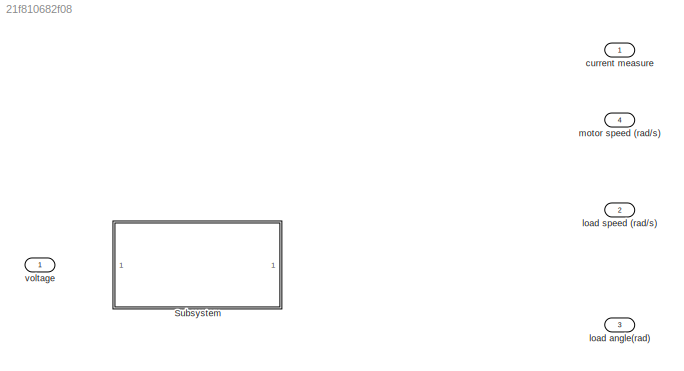
MODEL slx_21f810682f08
KIND model
CONFIG AbsTol = auto
CONFIG EnableMultiTasking = off
CONFIG FixedStep = auto
CONFIG MaxStep = auto
CONFIG MinStep = auto
CONFIG RelTol = 1e-3
CONFIG SampleTimeConstraint = Unconstrained
CONFIG SolverName = VariableStepAuto
CONFIG StartTime = 0.0
CONFIG StopTime = 1
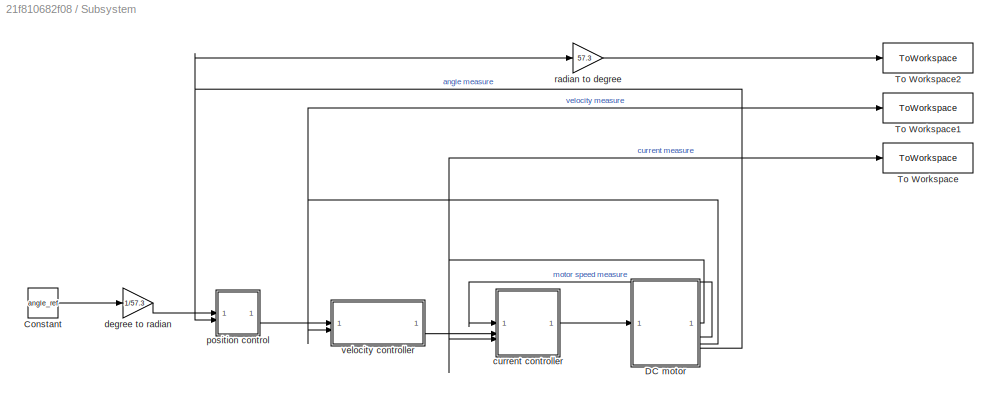
BLOCK [SubSystem] Subsystem
BLOCK [Constant] Subsystem/Constant
  Value = angle_ref
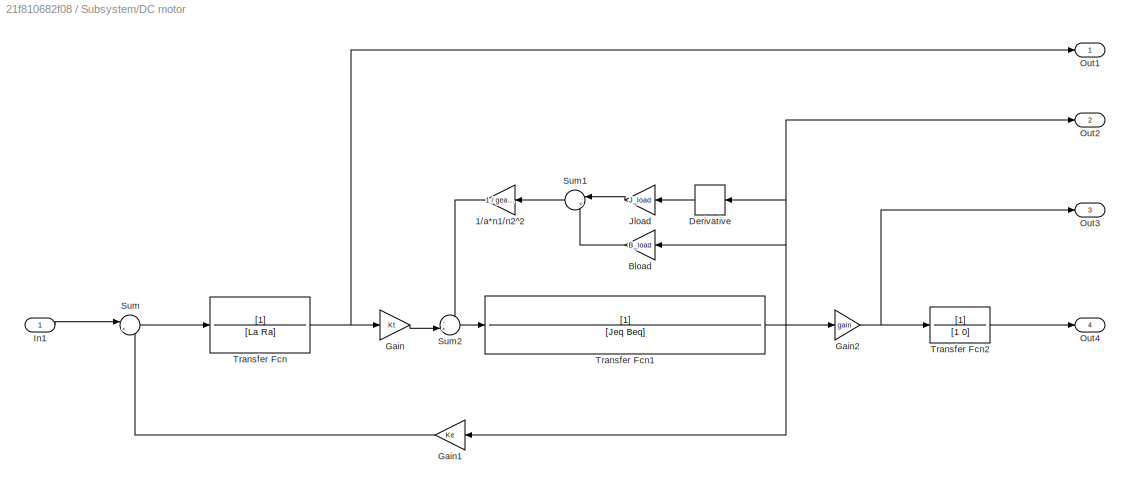
BLOCK [SubSystem] Subsystem/DC motor
BLOCK [Gain] Subsystem/DC motor/1//a*n1//n2^2
  Gain = 1 / gear_alpha * gear_ratio * gear_ratio
  NameLocation = top
BLOCK [Gain] Subsystem/DC motor/Bload
  Gain = B_load
  NameLocation = top
BLOCK [Derivative] Subsystem/DC motor/Derivative
  NameLocation = top
BLOCK [Gain] Subsystem/DC motor/Gain
  Gain = Kt
BLOCK [Gain] Subsystem/DC motor/Gain1
  Gain = Ke
  NameLocation = top
BLOCK [Gain] Subsystem/DC motor/Gain2
  Gain = gain
BLOCK [Inport] Subsystem/DC motor/In1
BLOCK [Gain] Subsystem/DC motor/Jload
  Gain = J_load
  NameLocation = top
BLOCK [Outport] Subsystem/DC motor/Out1
BLOCK [Outport] Subsystem/DC motor/Out2
  Port = 2
BLOCK [Outport] Subsystem/DC motor/Out3
  Port = 3
BLOCK [Outport] Subsystem/DC motor/Out4
  Port = 4
BLOCK [Sum] Subsystem/DC motor/Sum
  Inputs = |+-
BLOCK [Sum] Subsystem/DC motor/Sum1
  Inputs = |++
  NameLocation = top
BLOCK [Sum] Subsystem/DC motor/Sum2
  Inputs = -+|
BLOCK [TransferFcn] Subsystem/DC motor/Transfer Fcn
  Denominator = [La Ra]
BLOCK [TransferFcn] Subsystem/DC motor/Transfer Fcn1
  Denominator = [Jeq Beq]
BLOCK [TransferFcn] Subsystem/DC motor/Transfer Fcn2
  Denominator = [1 0]
BLOCK [ToWorkspace] Subsystem/To Workspace
  FixptAsFi = on
  MaxDataPoints = inf
  SampleTime = -1
  SaveFormat = Timeseries
  VariableName = current_measure
BLOCK [ToWorkspace] Subsystem/To Workspace1
  FixptAsFi = on
  MaxDataPoints = inf
  SampleTime = -1
  SaveFormat = Timeseries
  VariableName = velocity_measure
BLOCK [ToWorkspace] Subsystem/To Workspace2
  FixptAsFi = on
  MaxDataPoints = inf
  SampleTime = -1
  SaveFormat = Timeseries
  VariableName = angle_measure
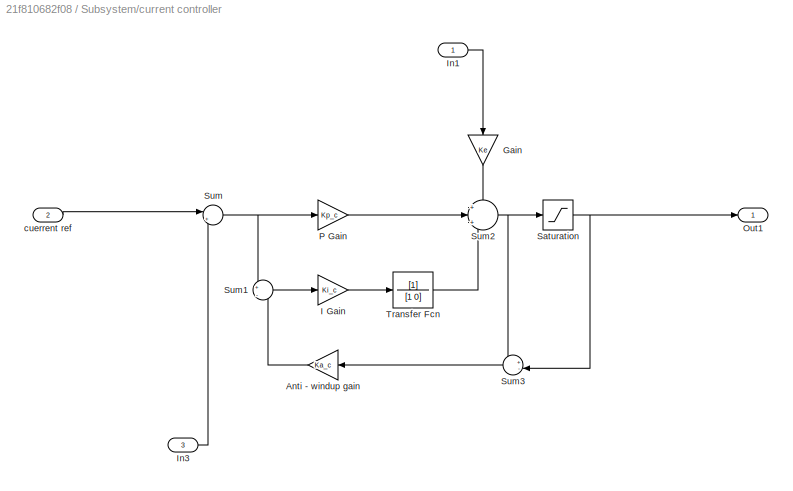
BLOCK [SubSystem] Subsystem/current controller
BLOCK [Gain] Subsystem/current controller/Anti - windup gain
  Gain = Ka_c
  NameLocation = top
BLOCK [Gain] Subsystem/current controller/Gain
  Gain = Ke
  NameLocation = left
BLOCK [Gain] Subsystem/current controller/I Gain
  Gain = Ki_c
BLOCK [Inport] Subsystem/current controller/In1
BLOCK [Inport] Subsystem/current controller/In3
  Port = 3
BLOCK [Outport] Subsystem/current controller/Out1
BLOCK [Gain] Subsystem/current controller/P Gain
  Gain = Kp_c
BLOCK [Saturate] Subsystem/current controller/Saturation
  LowerLimit = -48
  UpperLimit = 48
BLOCK [Sum] Subsystem/current controller/Sum
  Inputs = |+-
BLOCK [Sum] Subsystem/current controller/Sum1
  Inputs = +|-
BLOCK [Sum] Subsystem/current controller/Sum2
  Inputs = +|+|+
BLOCK [Sum] Subsystem/current controller/Sum3
  Inputs = +-|
  NameLocation = top
BLOCK [TransferFcn] Subsystem/current controller/Transfer Fcn
  Denominator = [1 0]
BLOCK [Inport] Subsystem/current controller/cuerrent ref
  Port = 2
BLOCK [Gain] Subsystem/degree to radian
  Gain = 1/57.3
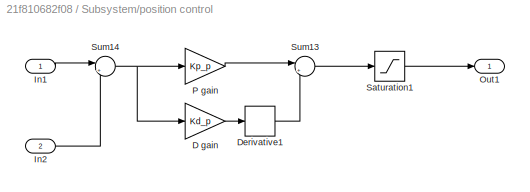
BLOCK [SubSystem] Subsystem/position control
BLOCK [Gain] Subsystem/position control/D gain
  Gain = Kd_p
BLOCK [Derivative] Subsystem/position control/Derivative1
BLOCK [Inport] Subsystem/position control/In1
BLOCK [Inport] Subsystem/position control/In2
  Port = 2
BLOCK [Outport] Subsystem/position control/Out1
BLOCK [Gain] Subsystem/position control/P gain
  Gain = Kp_p
BLOCK [Saturate] Subsystem/position control/Saturation1
  LowerLimit = -643
  UpperLimit = 643
BLOCK [Sum] Subsystem/position control/Sum13
  Inputs = |++
BLOCK [Sum] Subsystem/position control/Sum14
  Inputs = |+-
BLOCK [Gain] Subsystem/radian to degree
  Gain = 57.3
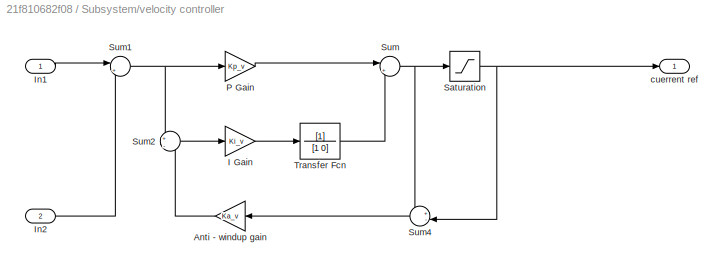
BLOCK [SubSystem] Subsystem/velocity controller
BLOCK [Gain] Subsystem/velocity controller/Anti - windup gain
  Gain = Ka_v
  NameLocation = top
BLOCK [Gain] Subsystem/velocity controller/I Gain
  Gain = Ki_v
BLOCK [Inport] Subsystem/velocity controller/In1
BLOCK [Inport] Subsystem/velocity controller/In2
  Port = 2
BLOCK [Gain] Subsystem/velocity controller/P Gain
  Gain = Kp_v
BLOCK [Saturate] Subsystem/velocity controller/Saturation
  LowerLimit = -27.3
  UpperLimit = 27.3
BLOCK [Sum] Subsystem/velocity controller/Sum
  Inputs = |++
BLOCK [Sum] Subsystem/velocity controller/Sum1
  Inputs = |+-
BLOCK [Sum] Subsystem/velocity controller/Sum2
  Inputs = +|-
BLOCK [Sum] Subsystem/velocity controller/Sum4
  Inputs = +-|
  NameLocation = top
BLOCK [TransferFcn] Subsystem/velocity controller/Transfer Fcn
  Denominator = [1 0]
BLOCK [Outport] Subsystem/velocity controller/cuerrent ref
BLOCK [Outport] current measure
BLOCK [Outport] load angle(rad)
  Port = 3
BLOCK [Outport] load speed (rad//s)
  Port = 2
BLOCK [Outport] motor speed (rad//s)
  Port = 4
BLOCK [Inport] voltage
LINE Subsystem/Constant:1 -> Subsystem/degree to radian:1
LINE Subsystem/DC motor/1//a*n1//n2^2:1 -> Subsystem/DC motor/Sum2:1
LINE Subsystem/DC motor/Bload:1 -> Subsystem/DC motor/Sum1:2
LINE Subsystem/DC motor/Derivative:1 -> Subsystem/DC motor/Jload:1
LINE Subsystem/DC motor/Gain1:1 -> Subsystem/DC motor/Sum:2
NET Subsystem/DC motor/Gain2:1 -> Subsystem/DC motor/Out3:1, Subsystem/DC motor/Transfer Fcn2:1
LINE Subsystem/DC motor/Gain:1 -> Subsystem/DC motor/Sum2:2
LINE Subsystem/DC motor/In1:1 -> Subsystem/DC motor/Sum:1
LINE Subsystem/DC motor/Jload:1 -> Subsystem/DC motor/Sum1:1
LINE Subsystem/DC motor/Sum1:1 -> Subsystem/DC motor/1//a*n1//n2^2:1
LINE Subsystem/DC motor/Sum2:1 -> Subsystem/DC motor/Transfer Fcn1:1
LINE Subsystem/DC motor/Sum:1 -> Subsystem/DC motor/Transfer Fcn:1
NET Subsystem/DC motor/Transfer Fcn1:1 -> Subsystem/DC motor/Bload:1, Subsystem/DC motor/Derivative:1, Subsystem/DC motor/Gain1:1, Subsystem/DC motor/Gain2:1, Subsystem/DC motor/Out2:1
LINE Subsystem/DC motor/Transfer Fcn2:1 -> Subsystem/DC motor/Out4:1
NET Subsystem/DC motor/Transfer Fcn:1 -> Subsystem/DC motor/Gain:1, Subsystem/DC motor/Out1:1
NET Subsystem/DC motor:1 -> Subsystem/To Workspace:1, Subsystem/current controller:3
LINE Subsystem/DC motor:2 -> Subsystem/current controller:1
NET Subsystem/DC motor:3 -> Subsystem/To Workspace1:1, Subsystem/velocity controller:2
NET Subsystem/DC motor:4 -> Subsystem/position control:2, Subsystem/radian to degree:1
LINE Subsystem/current controller/Anti - windup gain:1 -> Subsystem/current controller/Sum1:2
LINE Subsystem/current controller/Gain:1 -> Subsystem/current controller/Sum2:1
LINE Subsystem/current controller/I Gain:1 -> Subsystem/current controller/Transfer Fcn:1
LINE Subsystem/current controller/In1:1 -> Subsystem/current controller/Gain:1
LINE Subsystem/current controller/In3:1 -> Subsystem/current controller/Sum:2
LINE Subsystem/current controller/P Gain:1 -> Subsystem/current controller/Sum2:2
NET Subsystem/current controller/Saturation:1 -> Subsystem/current controller/Out1:1, Subsystem/current controller/Sum3:2
LINE Subsystem/current controller/Sum1:1 -> Subsystem/current controller/I Gain:1
NET Subsystem/current controller/Sum2:1 -> Subsystem/current controller/Saturation:1, Subsystem/current controller/Sum3:1
LINE Subsystem/current controller/Sum3:1 -> Subsystem/current controller/Anti - windup gain:1
NET Subsystem/current controller/Sum:1 -> Subsystem/current controller/P Gain:1, Subsystem/current controller/Sum1:1
LINE Subsystem/current controller/Transfer Fcn:1 -> Subsystem/current controller/Sum2:3
LINE Subsystem/current controller/cuerrent ref:1 -> Subsystem/current controller/Sum:1
LINE Subsystem/current controller:1 -> Subsystem/DC motor:1
LINE Subsystem/degree to radian:1 -> Subsystem/position control:1
LINE Subsystem/position control/D gain:1 -> Subsystem/position control/Derivative1:1
LINE Subsystem/position control/Derivative1:1 -> Subsystem/position control/Sum13:2
LINE Subsystem/position control/In1:1 -> Subsystem/position control/Sum14:1
LINE Subsystem/position control/In2:1 -> Subsystem/position control/Sum14:2
LINE Subsystem/position control/P gain:1 -> Subsystem/position control/Sum13:1
LINE Subsystem/position control/Saturation1:1 -> Subsystem/position control/Out1:1
LINE Subsystem/position control/Sum13:1 -> Subsystem/position control/Saturation1:1
NET Subsystem/position control/Sum14:1 -> Subsystem/position control/D gain:1, Subsystem/position control/P gain:1
LINE Subsystem/position control:1 -> Subsystem/velocity controller:1
LINE Subsystem/radian to degree:1 -> Subsystem/To Workspace2:1
LINE Subsystem/velocity controller/Anti - windup gain:1 -> Subsystem/velocity controller/Sum2:2
LINE Subsystem/velocity controller/I Gain:1 -> Subsystem/velocity controller/Transfer Fcn:1
LINE Subsystem/velocity controller/In1:1 -> Subsystem/velocity controller/Sum1:1
LINE Subsystem/velocity controller/In2:1 -> Subsystem/velocity controller/Sum1:2
LINE Subsystem/velocity controller/P Gain:1 -> Subsystem/velocity controller/Sum:1
NET Subsystem/velocity controller/Saturation:1 -> Subsystem/velocity controller/Sum4:2, Subsystem/velocity controller/cuerrent ref:1
NET Subsystem/velocity controller/Sum1:1 -> Subsystem/velocity controller/P Gain:1, Subsystem/velocity controller/Sum2:1
LINE Subsystem/velocity controller/Sum2:1 -> Subsystem/velocity controller/I Gain:1
LINE Subsystem/velocity controller/Sum4:1 -> Subsystem/velocity controller/Anti - windup gain:1
NET Subsystem/velocity controller/Sum:1 -> Subsystem/velocity controller/Saturation:1, Subsystem/velocity controller/Sum4:1
LINE Subsystem/velocity controller/Transfer Fcn:1 -> Subsystem/velocity controller/Sum:2
LINE Subsystem/velocity controller:1 -> Subsystem/current controller:2
note: NET lines group one-source signal fan-out (src -> all destinations, sorted); 1:1 wires keep LINE
